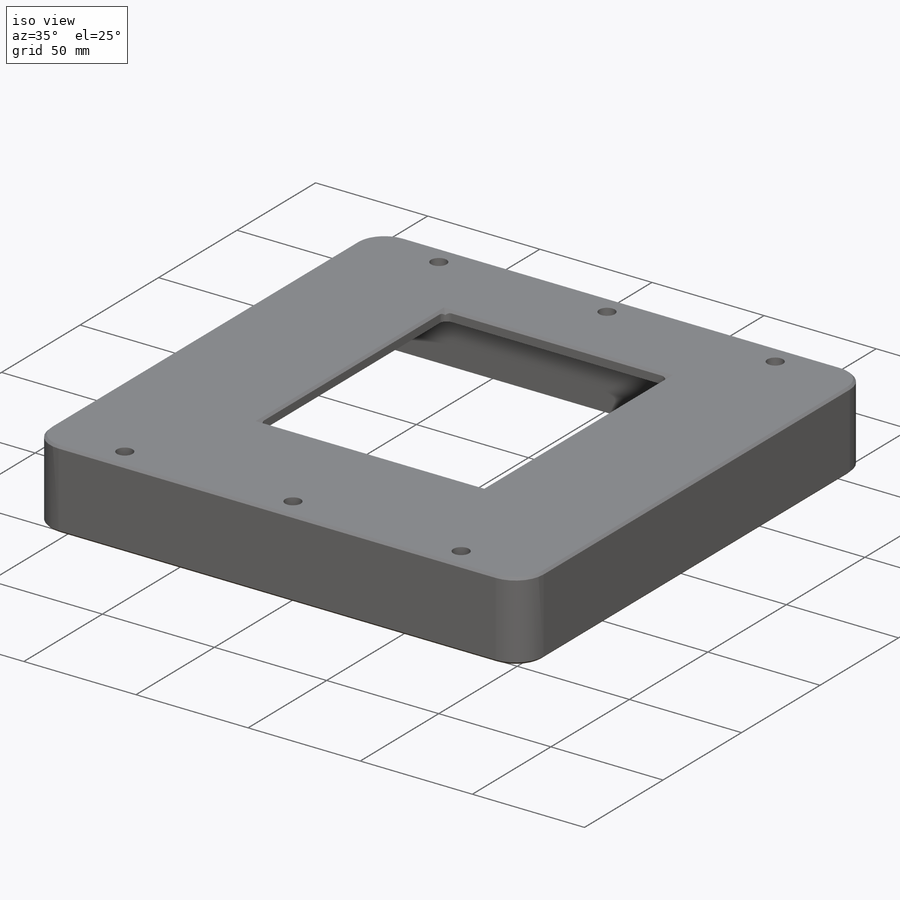
[diagram: iso view]
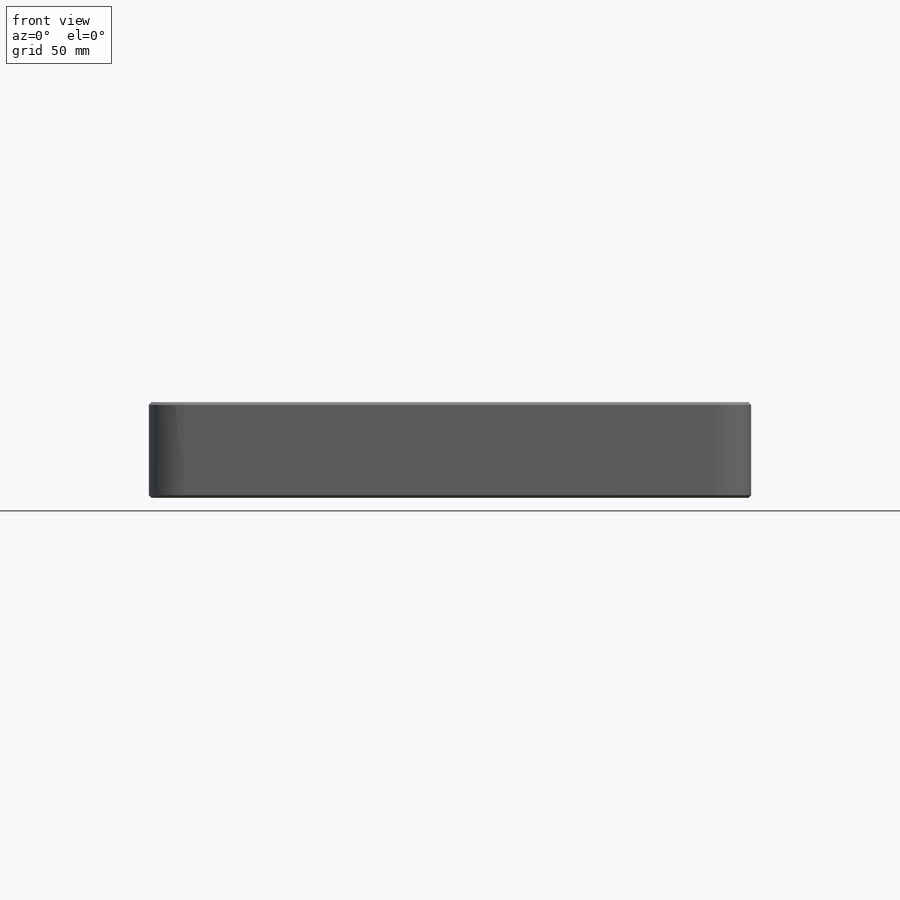
[diagram: front view]
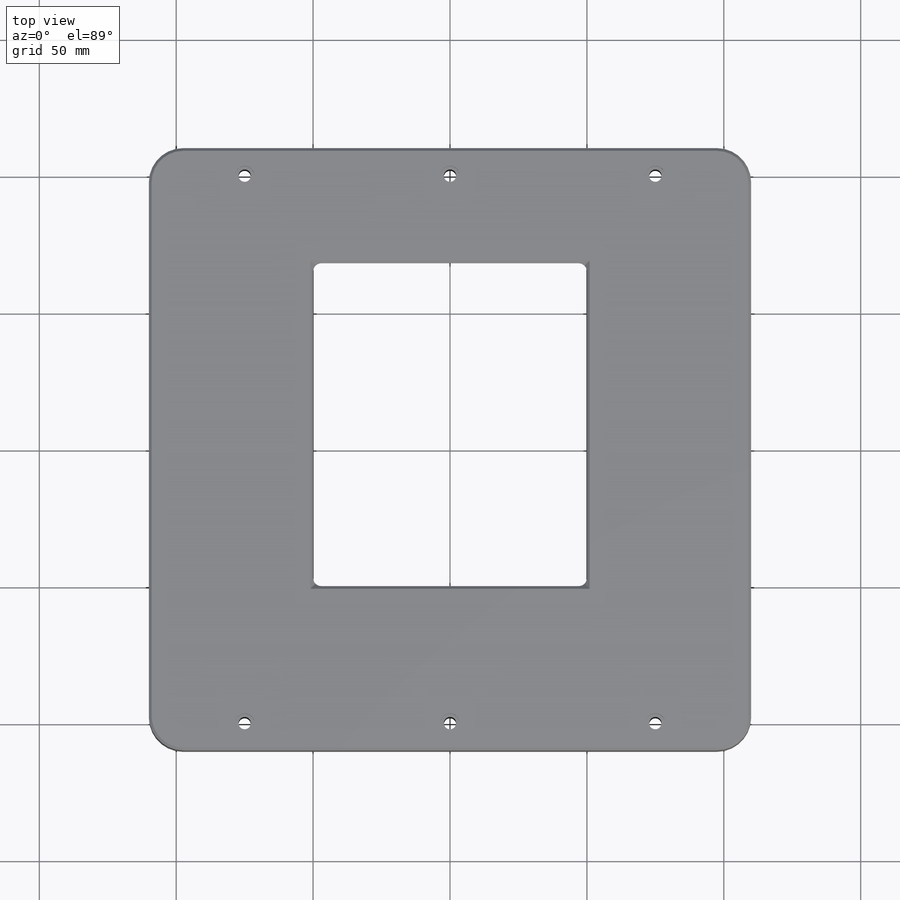
[diagram: top view]
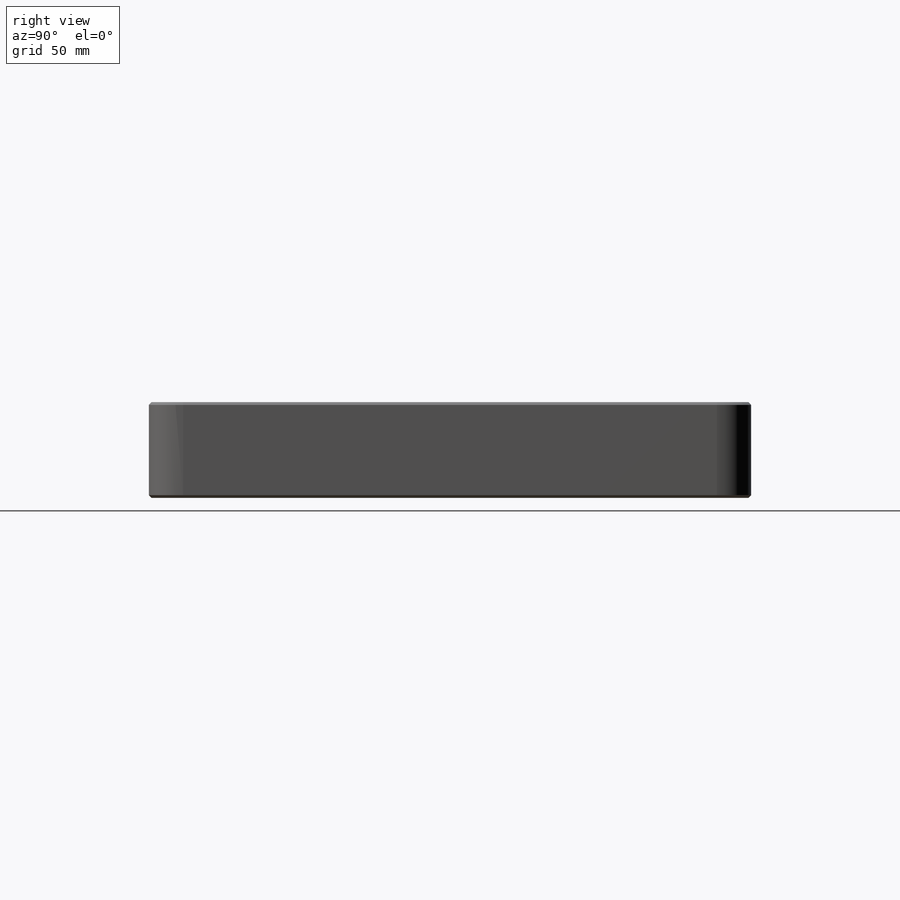
[diagram: right view]
SOLIDWORKS PART (.sldprt)
format: sldprt  version: not decoded by parser v0  size: 348,160 bytes
history: native  units: mm
features: sketch x6, cut_extrude x5, material x1, extrude x1, chamfer x1, fillet x1 (+13 scaffold rows collapsed)
feature tree (28):
  scaffold x13  (default folders/planes/origin — collapsed)
  material  "6063-T6"
  sketch  "Sketch2"  dims[D1=200.0mm]
  extrude  "Extrude1"  Depth=35mm
  sketch  "PiezoCutout"  dims[c1.D1=10.0mm c1.D2=12.0mm c2.D1=12.5mm]
  cut_extrude  "PiezoCutoutex"  Depth=30.5mm
  sketch  "Sk Centre hole"
  cut_extrude  "Cut Centre hole"  [1 undecoded]
  chamfer  "ChamferBot"  Distance=1mm Angle=45deg
  sketch  "ThroughHoles"  dims[D1=2.0mm]
  cut_extrude  "Cut Through holes"  [1 undecoded]
  fillet  "Centre hole Fillet"  Radius=3mm
  sketch  "Sketch3"  dims[D1=5.0mm]
  cut_extrude  "Cut-M4 sink"  Depth=4.5mm
  sketch  "NanoPL_holes"  dims[D1=2.99mm]
  cut_extrude  "Cut-NanoPL_holes"  [1 undecoded]
decode coverage: 10 of 14 modeling features carry decoded parameters
note: 3 parameter values undecoded
summary: no parameter record found for 3 features
note: suppression state not decoded; provenance and decode notes live in map.json
